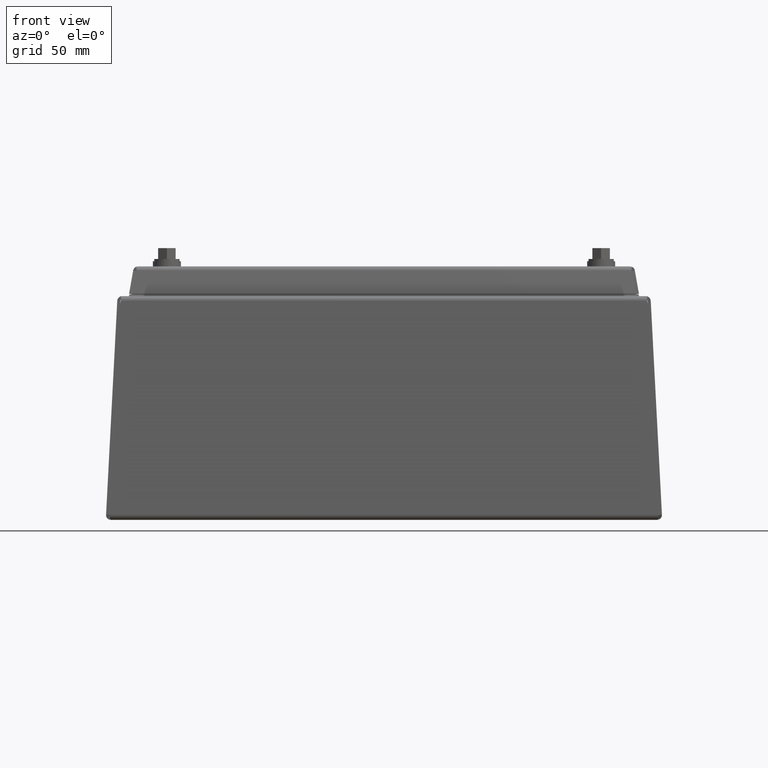
[diagram: clean part render]
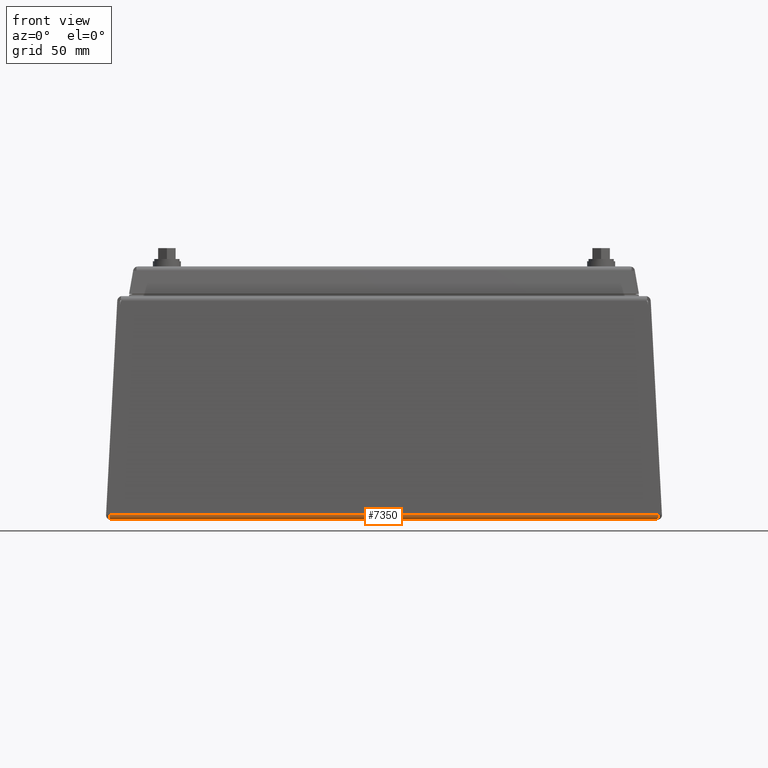
[diagram: same view with one face highlighted and labeled with its STEP entity id]
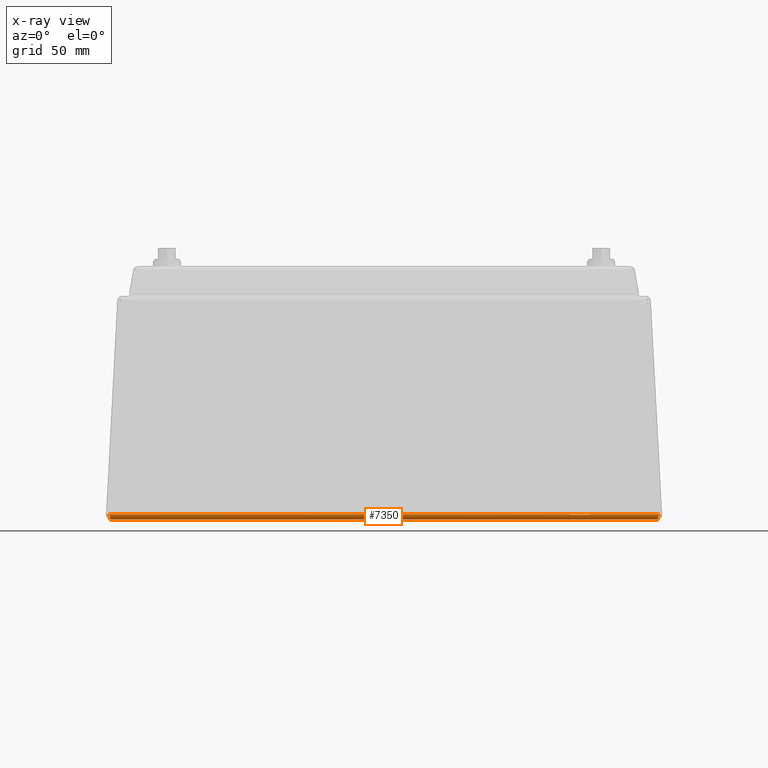
[diagram: x-ray of the same camera — body ghosted, the highlighted face saturated]
A machine part, front view. The second image highlights one B-rep face of the part: STEP entity #7350.
The next image is the same camera in x-ray: the body ghosted, the highlighted face saturated — about 0% of this face is hidden behind the body in this view.
In plain terms, the highlighted cylindrical surface (edge-blend (fillet) strip) has radius 2.1844 mm, axis along (-1, -0, 0).
Its self-contained STEP definition (entity closure, byte-faithful):
#45 = VECTOR ( 'NONE', #12166, 39.37007874015748143 ) ;
#272 = CARTESIAN_POINT ( 'NONE',  ( 4.886153036596556198, -3.407808088653381695, -7.107153580734525832E-13 ) ) ;
#712 = ORIENTED_EDGE ( 'NONE', *, *, #10504, .T. ) ;
#1346 = EDGE_CURVE ( 'NONE', #3281, #14490, #1690, .T. ) ;
#1503 = CARTESIAN_POINT ( 'NONE',  ( 4.913789277476103834, -3.487822516355746583, 0.09050089223689214424 ) ) ;
#1562 = CARTESIAN_POINT ( 'NONE',  ( -4.901782601018863872, -3.471938586844526942, 0.03570085590480791271 ) ) ;
#1690 = LINE ( 'NONE', #15067, #15148 ) ;
#1728 = CARTESIAN_POINT ( 'NONE',  ( 4.894545817923829034, -3.446296743100374371, 0.01209285489892141137 ) ) ;
#2597 = CARTESIAN_POINT ( 'NONE',  ( 4.908964257316708490, -3.486079438309789058, 0.06727188897485736341 ) ) ;
#2885 = ORIENTED_EDGE ( 'NONE', *, *, #13120, .T. ) ;
#3281 = VERTEX_POINT ( 'NONE', #12021 ) ;
#3371 = CARTESIAN_POINT ( 'NONE',  ( -4.884940376328239076, -3.401940376372323271, 0.000000000000000000 ) ) ;
#3770 = CARTESIAN_POINT ( 'NONE',  ( 4.884940376366551540, -3.401940376360905738, 0.000000000000000000 ) ) ;
#3796 = EDGE_LOOP ( 'NONE', ( #712, #8389, #2885, #11528 ) ) ;
#3831 = CARTESIAN_POINT ( 'NONE',  ( -4.913789277431614089, -3.487822516351799074, 0.09050089231220830033 ) ) ;
#4004 = CARTESIAN_POINT ( 'NONE',  ( 4.890952161225753159, -3.430551676017791873, 0.004690582619917054753 ) ) ;
#4084 = CARTESIAN_POINT ( 'NONE',  ( 4.912576616734912527, -3.488129608688879113, 0.08464122145263465458 ) ) ;
#4446 = CARTESIAN_POINT ( 'NONE',  ( -4.913789277431614089, -3.487822516351799074, 0.09050089231220830033 ) ) ;
#5028 = CARTESIAN_POINT ( 'NONE',  ( 4.887345643820569130, -3.413577858320893998, 0.0005945786173346554121 ) ) ;
#5084 = CARTESIAN_POINT ( 'NONE',  ( -4.890973053512671420, -3.430646415621661394, 0.004726203819280904404 ) ) ;
#5252 = CARTESIAN_POINT ( 'NONE',  ( 4.889738458457642878, -3.424919702194134885, 0.002924928093291371406 ) ) ;
#6107 = CARTESIAN_POINT ( 'NONE',  ( -4.905373476067926397, -3.480608648382919501, 0.05077031364877191560 ) ) ;
#6180 = CARTESIAN_POINT ( 'NONE',  ( -4.900567269504550794, -3.468326231612564037, 0.03102322701496255941 ) ) ;
#6267 = CARTESIAN_POINT ( 'NONE',  ( -4.904183835885413956, -3.478067667162431320, 0.04557242323721488048 ) ) ;
#6300 = EDGE_CURVE ( 'NONE', #12625, #12452, #7377, .T. ) ;
#6347 = CARTESIAN_POINT ( 'NONE',  ( -4.894559784171984340, -3.446585950022086564, 0.01159140308882449996 ) ) ;
#6364 = CARTESIAN_POINT ( 'NONE',  ( 4.896947052794767608, -3.455834010514245769, 0.01873017344174576077 ) ) ;
#6600 = FACE_OUTER_BOUND ( 'NONE', #3796, .T. ) ;
#6695 = DIRECTION ( 'NONE',  ( -1.000000000000000000, 0.000000000000000000, -0.000000000000000000 ) ) ;
#7187 = CARTESIAN_POINT ( 'NONE',  ( -4.911384009975547471, -3.487837811333790672, 0.07884824120396757841 ) ) ;
#7216 = CARTESIAN_POINT ( 'NONE',  ( 4.884940376366849968, -3.487822516355744806, 0.09050089223689113116 ) ) ;
#7350 = ADVANCED_FACE ( 'NONE', ( #6600 ), #7681, .T. ) ;
#7377 = LINE ( 'NONE', #7216, #45 ) ;
#7422 = CARTESIAN_POINT ( 'NONE',  ( -4.889765396518806817, -3.425046319435467002, 0.002956401317663548238 ) ) ;
#7681 = CYLINDRICAL_SURFACE ( 'NONE', #15080, 0.08600000000000011802 ) ;
#7842 = CARTESIAN_POINT ( 'NONE',  ( 4.884940376366849968, -3.401940376366851648, 0.08600000000000000699 ) ) ;
#8389 = ORIENTED_EDGE ( 'NONE', *, *, #6300, .T. ) ;
#8609 = CARTESIAN_POINT ( 'NONE',  ( 4.898162384311286921, -3.460316172811179758, 0.02258238624760530028 ) ) ;
#8770 = CARTESIAN_POINT ( 'NONE',  ( 4.901752360902785099, -3.472277570024849602, 0.03517885709128713151 ) ) ;
#9855 = CARTESIAN_POINT ( 'NONE',  ( -4.886153037107152208, -3.407808088652786171, 4.335101785162277424E-13 ) ) ;
#10029 = CARTESIAN_POINT ( 'NONE',  ( 4.911378637689733040, -3.487839133330692842, 0.07882173842251924412 ) ) ;
#10504 = EDGE_CURVE ( 'NONE', #3281, #12625, #14940, .T. ) ;
#10797 = CARTESIAN_POINT ( 'NONE',  ( -4.908991195342839120, -3.486104241765264788, 0.06739997986630966165 ) ) ;
#11136 = CARTESIAN_POINT ( 'NONE',  ( 4.904169869654798397, -3.478583567672775878, 0.04530985662647485368 ) ) ;
#11373 = DIRECTION ( 'NONE',  ( -1.000000000000000000, -5.592387589582129514E-17, 0.000000000000000000 ) ) ;
#11528 = ORIENTED_EDGE ( 'NONE', *, *, #1346, .F. ) ;
#11974 = CARTESIAN_POINT ( 'NONE',  ( 4.913789277476103834, -3.487822516355746583, 0.09050089223689214424 ) ) ;
#12021 = CARTESIAN_POINT ( 'NONE',  ( 4.884940376366551540, -3.401940376360905738, 0.000000000000000000 ) ) ;
#12058 = B_SPLINE_CURVE_WITH_KNOTS ( 'NONE', 3,
 ( #3831, #12296, #7187, #10797, #13224, #6107, #6267, #1562, #6180, #12135, #6347, #5084, #7422, #14465, #9855, #14624 ),
 .UNSPECIFIED., .F., .F.,
 ( 4, 2, 2, 2, 2, 2, 2, 4 ),
 ( 0.000000000000000000, 0.0004502447679609390707, 0.0009004895359218787919, 0.001350734303882818350, 0.001800979071843758234, 0.002701468607765638436, 0.003151713375726578319, 0.003601958143687518203 ),
 .UNSPECIFIED. ) ;
#12135 = CARTESIAN_POINT ( 'NONE',  ( -4.896977292919600266, -3.456373034956589763, 0.01841897413426606123 ) ) ;
#12166 = DIRECTION ( 'NONE',  ( -1.000000000000000000, -5.592387589582129514E-17, 0.000000000000000000 ) ) ;
#12296 = CARTESIAN_POINT ( 'NONE',  ( -4.912576617197296436, -3.488129608689840566, 0.08464122144233202083 ) ) ;
#12452 = VERTEX_POINT ( 'NONE', #4446 ) ;
#12625 = VERTEX_POINT ( 'NONE', #11974 ) ;
#13120 = EDGE_CURVE ( 'NONE', #12452, #14490, #12058, .T. ) ;
#13224 = CARTESIAN_POINT ( 'NONE',  ( -4.907777492576952838, -3.484635761742405080, 0.06168331724949149136 ) ) ;
#13328 = CARTESIAN_POINT ( 'NONE',  ( 4.907756600320631435, -3.484605147650123413, 0.06158684321900628755 ) ) ;
#14465 = CARTESIAN_POINT ( 'NONE',  ( -4.887351016150156546, -3.413604393977581530, 0.0005946454817990159221 ) ) ;
#14490 = VERTEX_POINT ( 'NONE', #3371 ) ;
#14624 = CARTESIAN_POINT ( 'NONE',  ( -4.884940376328239076, -3.401940376372323271, 0.000000000000000000 ) ) ;
#14806 = CARTESIAN_POINT ( 'NONE',  ( 4.893356177739150326, -3.441238960898557409, 0.009283319439584500690 ) ) ;
#14940 = B_SPLINE_CURVE_WITH_KNOTS ( 'NONE', 3,
 ( #3770, #272, #5028, #5252, #4004, #14806, #1728, #6364, #8609, #8770, #11136, #13328, #2597, #10029, #4084, #1503 ),
 .UNSPECIFIED., .F., .F.,
 ( 4, 2, 2, 2, 2, 2, 2, 4 ),
 ( 1.114504559549238009E-14, 0.0004502447680388846417, 0.0009004895360666242271, 0.001350734304094363758, 0.001800979072122103290, 0.002701468608177583219, 0.003151713376205327304, 0.003601958144233071389 ),
 .UNSPECIFIED. ) ;
#14963 = DIRECTION ( 'NONE',  ( 0.000000000000000000, -1.000000000000000000, 0.000000000000000000 ) ) ;
#15067 = CARTESIAN_POINT ( 'NONE',  ( 0.000000000000000000, -3.401940376366855645, 0.000000000000000000 ) ) ;
#15080 = AXIS2_PLACEMENT_3D ( 'NONE', #7842, #11373, #14963 ) ;
#15148 = VECTOR ( 'NONE', #6695, 39.37007874015748143 ) ;